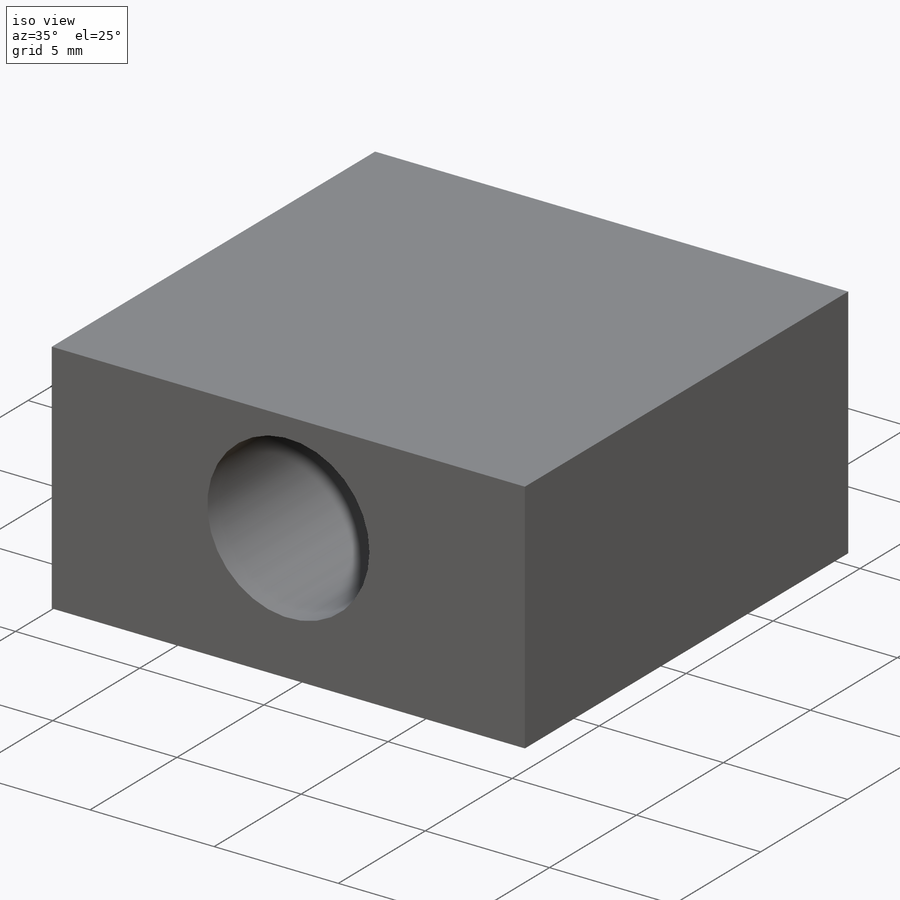
[diagram: iso view]
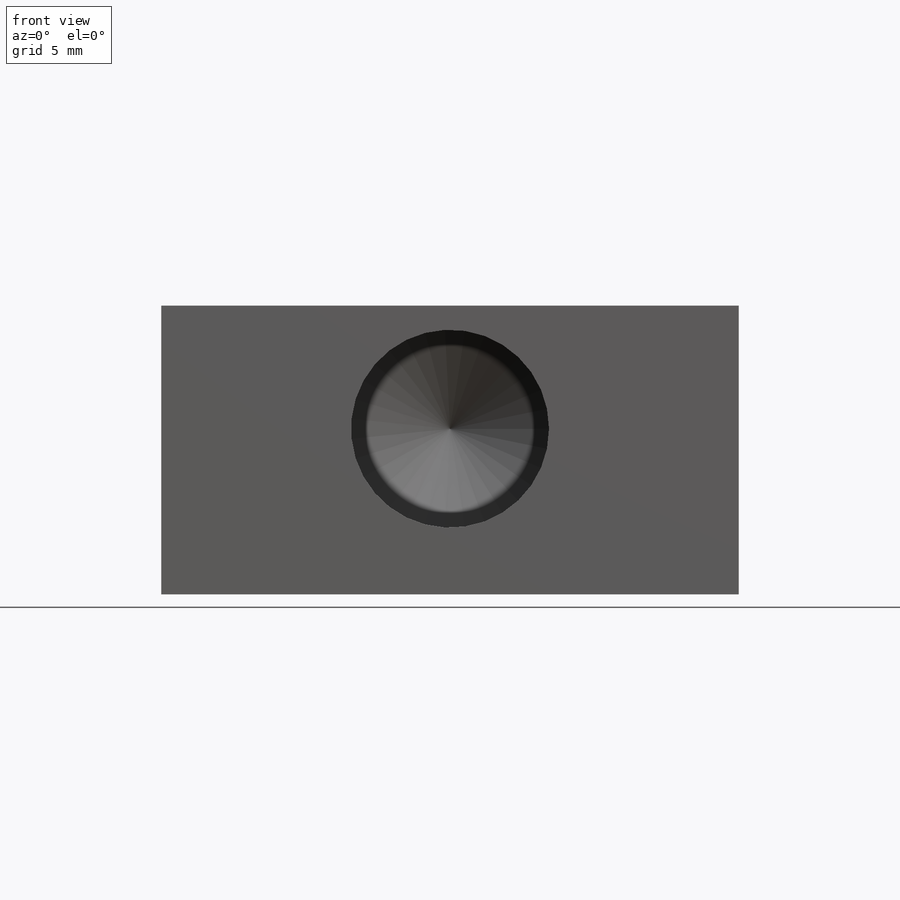
[diagram: front view]
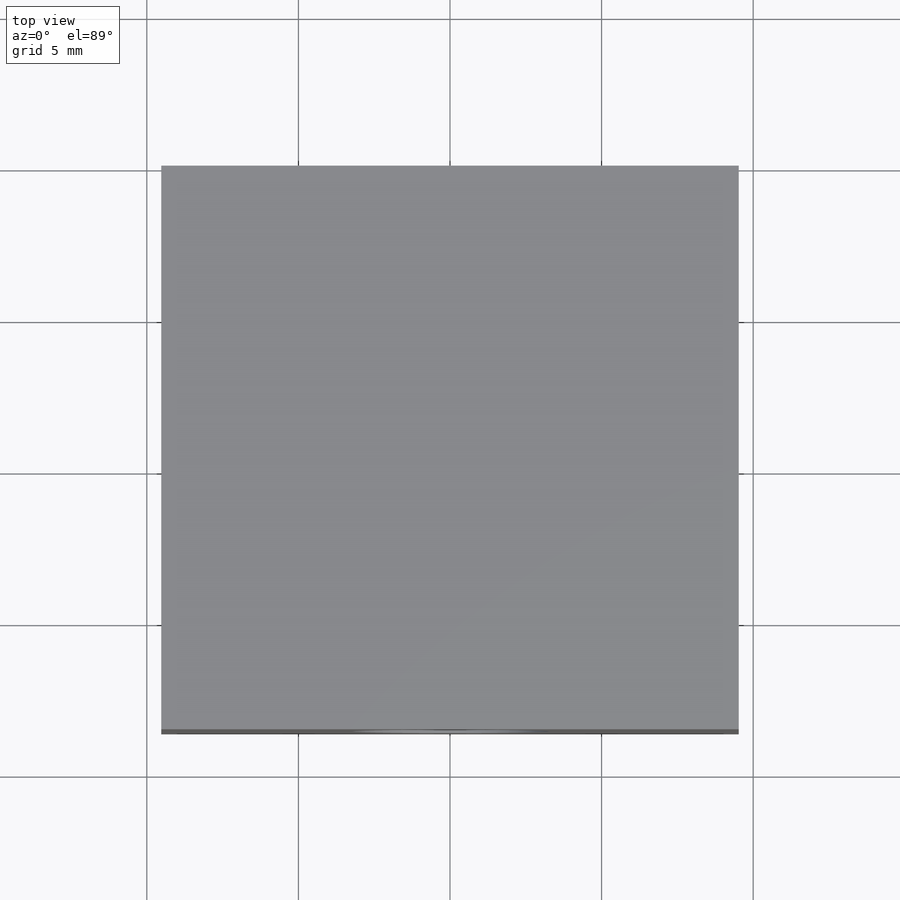
[diagram: top view]
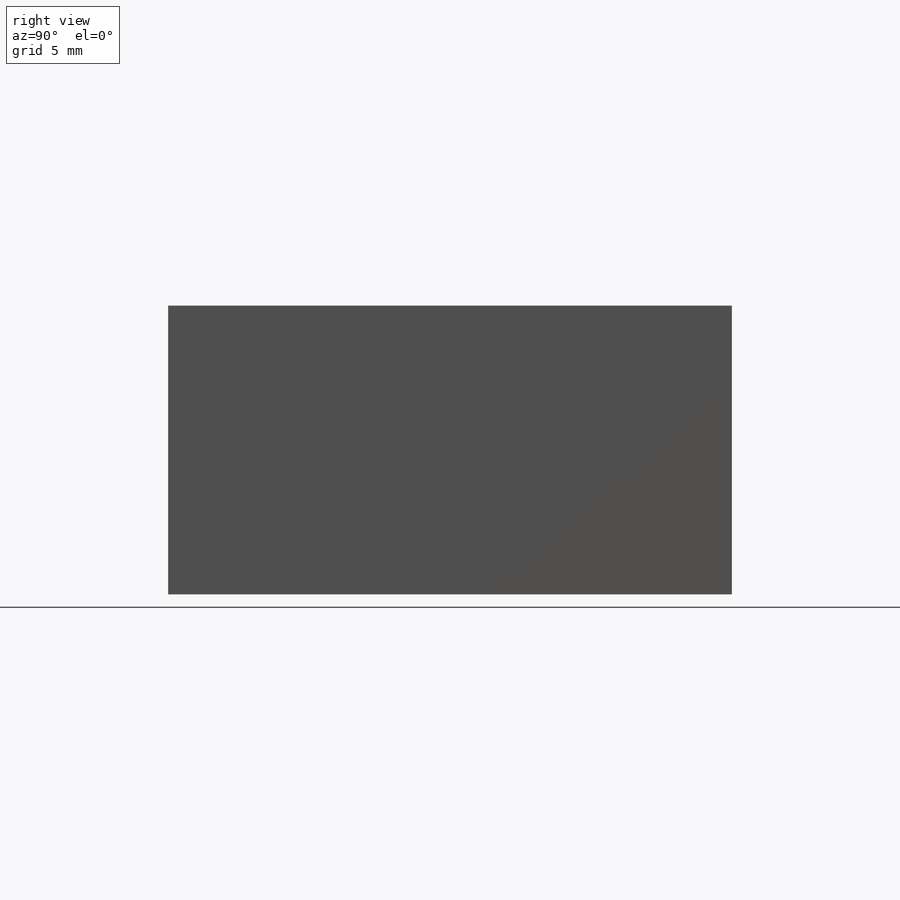
[diagram: right view]
SOLIDWORKS PART (.sldprt)
format: sldprt  version: not decoded by parser v0  size: 169,472 bytes
history: native  units: mm
features: sketch x4, material x1, extrude x1, hole x1 (+12 scaffold rows collapsed)
feature tree (19):
  scaffold x12  (default folders/planes/origin — collapsed)
  material  "6061-T6 (SS)"
  sketch  "Sketch1"  dims[D1=19.05mm D2=9.525mm]
  extrude  "Extrude1"  Depth=18.5928mm
  sketch  "Sketch2"  dims[D1=4.064mm]
  hole  "1/4 Clearance Hole1"  Diameter=6.5278mm Depth=15.24mm
  sketch  "3DSketch2"
  sketch  "Sketch4"  dims[hole-wizard template sketch: 47 standard entries collapsed; hole parameters kept: c15.Hole Depth=15.24mm c15.D3=~14.816244mm c15.Drill Angle=118.0deg]
decode coverage: 5 of 6 modeling features carry decoded parameters
note: ~ marks probable driven/reference dimensions
note: suppression state not decoded; provenance and decode notes live in map.json
